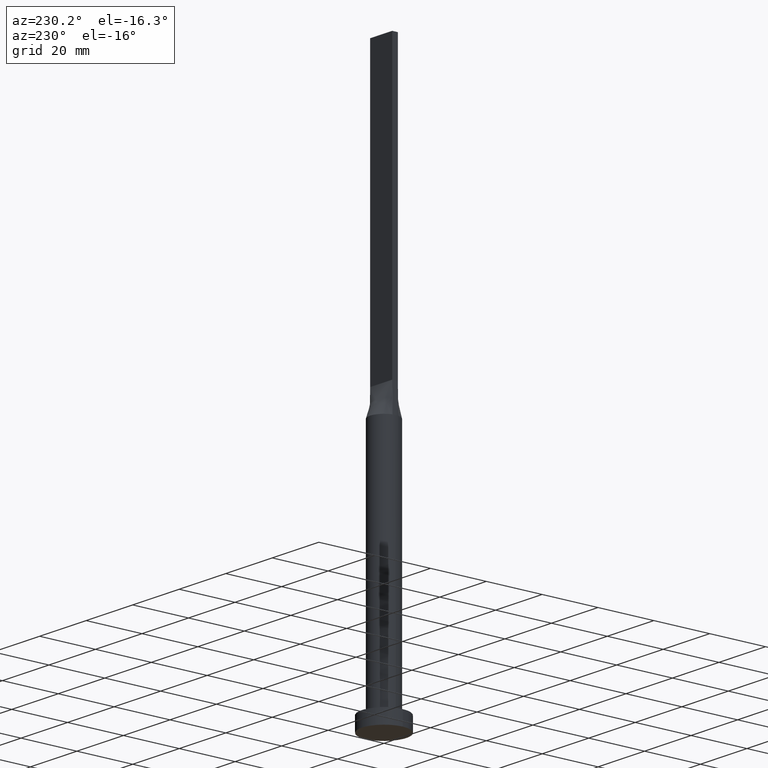
[diagram: clean part render]
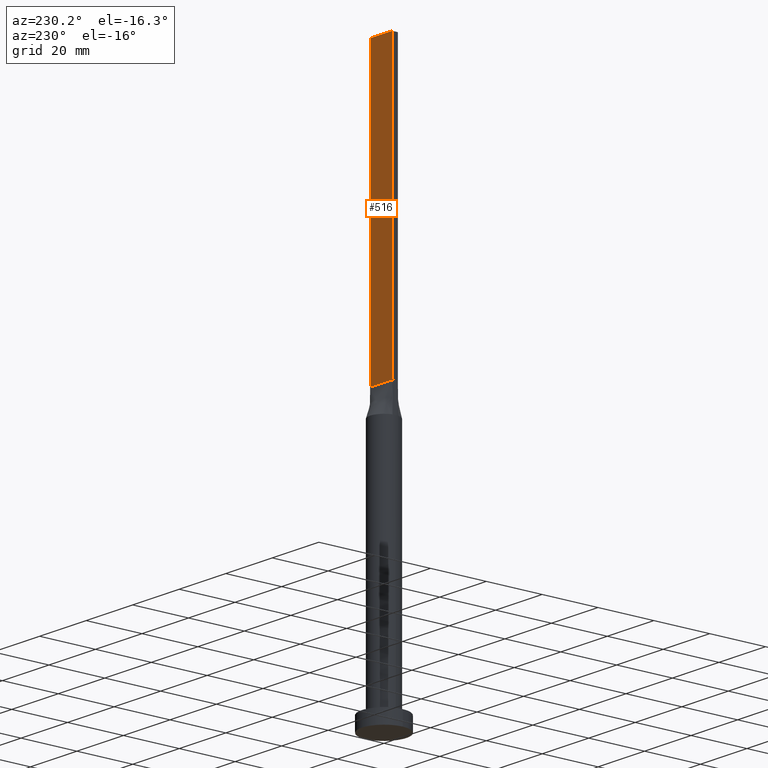
[diagram: same view with one face highlighted and labeled with its STEP entity id]
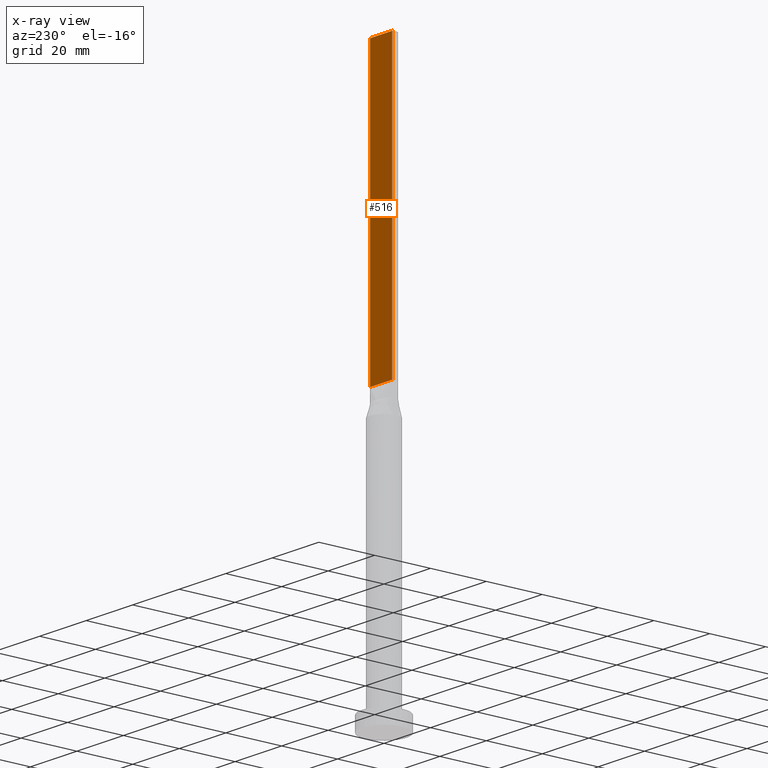
[diagram: x-ray of the same camera — body ghosted, the highlighted face saturated]
A machine part, auxiliary view. The second image highlights one B-rep face of the part: STEP entity #516.
The next image is the same camera in x-ray: the body ghosted, the highlighted face saturated — about 0% of this face is hidden behind the body in this view.
In plain terms, the highlighted planar face has unit normal (0, -1, 0).
Its self-contained STEP definition (entity closure, byte-faithful):
#15 = CARTESIAN_POINT ( 'NONE',  ( 4.750000000000000000, 1.000000000000000000, 200.0000000000000000 ) ) ;
#20 = LINE ( 'NONE', #398, #31 ) ;
#23 = CARTESIAN_POINT ( 'NONE',  ( -4.750000000000000000, 1.000000000000000000, 100.0000000000000000 ) ) ;
#31 = VECTOR ( 'NONE', #158, 1000.000000000000000 ) ;
#34 = LINE ( 'NONE', #281, #335 ) ;
#64 = CARTESIAN_POINT ( 'NONE',  ( -4.750000000000000000, 1.000000000000000000, 200.0000000000000000 ) ) ;
#66 = CARTESIAN_POINT ( 'NONE',  ( 4.750000000000000000, 1.000000000000000000, 100.0000000000000000 ) ) ;
#73 = VERTEX_POINT ( 'NONE', #64 ) ;
#102 = LINE ( 'NONE', #249, #265 ) ;
#135 = VECTOR ( 'NONE', #527, 1000.000000000000000 ) ;
#158 = DIRECTION ( 'NONE',  ( -1.000000000000000000, -0.000000000000000000, -0.000000000000000000 ) ) ;
#162 = DIRECTION ( 'NONE',  ( -1.000000000000000000, 0.000000000000000000, 0.000000000000000000 ) ) ;
#174 = ORIENTED_EDGE ( 'NONE', *, *, #323, .F. ) ;
#177 = ORIENTED_EDGE ( 'NONE', *, *, #232, .T. ) ;
#186 = AXIS2_PLACEMENT_3D ( 'NONE', #15, #292, #348 ) ;
#223 = VERTEX_POINT ( 'NONE', #579 ) ;
#232 = EDGE_CURVE ( 'NONE', #413, #263, #20, .T. ) ;
#234 = ORIENTED_EDGE ( 'NONE', *, *, #565, .F. ) ;
#245 = LINE ( 'NONE', #382, #135 ) ;
#249 = CARTESIAN_POINT ( 'NONE',  ( 4.750000000000000000, 1.000000000000000000, 200.0000000000000000 ) ) ;
#263 = VERTEX_POINT ( 'NONE', #23 ) ;
#265 = VECTOR ( 'NONE', #564, 1000.000000000000000 ) ;
#281 = CARTESIAN_POINT ( 'NONE',  ( 4.750000000000000000, 1.000000000000000000, 200.0000000000000000 ) ) ;
#292 = DIRECTION ( 'NONE',  ( 0.000000000000000000, -1.000000000000000000, 0.000000000000000000 ) ) ;
#323 = EDGE_CURVE ( 'NONE', #223, #73, #34, .T. ) ;
#335 = VECTOR ( 'NONE', #162, 1000.000000000000000 ) ;
#348 = DIRECTION ( 'NONE',  ( 0.000000000000000000, -0.000000000000000000, -1.000000000000000000 ) ) ;
#374 = EDGE_CURVE ( 'NONE', #223, #413, #102, .T. ) ;
#382 = CARTESIAN_POINT ( 'NONE',  ( -4.750000000000000000, 1.000000000000000000, 200.0000000000000000 ) ) ;
#398 = CARTESIAN_POINT ( 'NONE',  ( -4.750000000000000000, 1.000000000000000000, 100.0000000000000000 ) ) ;
#413 = VERTEX_POINT ( 'NONE', #66 ) ;
#431 = PLANE ( 'NONE',  #186 ) ;
#463 = EDGE_LOOP ( 'NONE', ( #177, #234, #174, #548 ) ) ;
#516 = ADVANCED_FACE ( 'NONE', ( #574 ), #431, .F. ) ;
#527 = DIRECTION ( 'NONE',  ( -0.000000000000000000, -0.000000000000000000, -1.000000000000000000 ) ) ;
#548 = ORIENTED_EDGE ( 'NONE', *, *, #374, .T. ) ;
#564 = DIRECTION ( 'NONE',  ( -0.000000000000000000, -0.000000000000000000, -1.000000000000000000 ) ) ;
#565 = EDGE_CURVE ( 'NONE', #73, #263, #245, .T. ) ;
#574 = FACE_OUTER_BOUND ( 'NONE', #463, .T. ) ;
#579 = CARTESIAN_POINT ( 'NONE',  ( 4.750000000000000000, 1.000000000000000000, 200.0000000000000000 ) ) ;